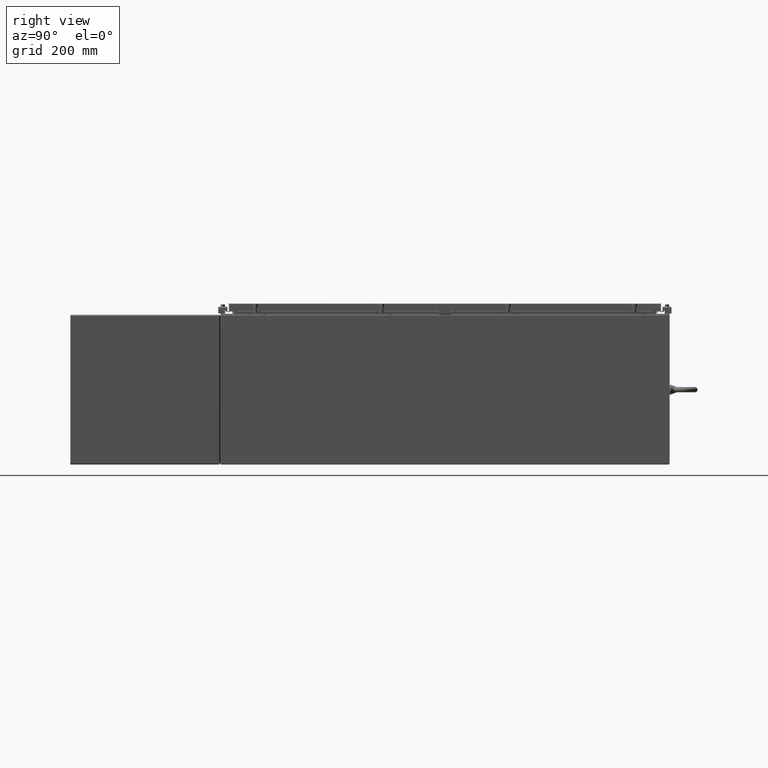
[diagram: clean part render]
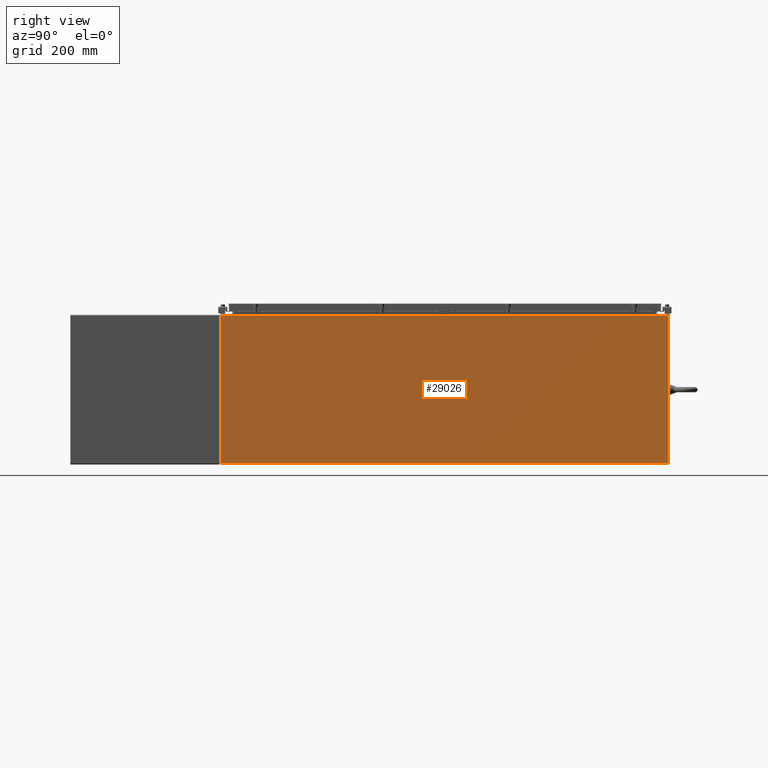
[diagram: same view with one face highlighted and labeled with its STEP entity id]
A machine part, right view. The second image highlights one B-rep face of the part: STEP entity #29026.
In plain terms, the highlighted planar face has unit normal (-1, 0, 0).
Its self-contained STEP definition (entity closure, byte-faithful):
#323 = CARTESIAN_POINT ( 'NONE',  ( 17.99999999999999600, 23.92529999999998600, 0.01300000000000203200 ) ) ;
#720 = LINE ( 'NONE', #53576, #12699 ) ;
#5114 = VERTEX_POINT ( 'NONE', #323 ) ;
#12098 = CARTESIAN_POINT ( 'NONE',  ( 17.99999999999999600, -23.92529999999998900, 0.01299999999999984700 ) ) ;
#12607 = DIRECTION ( 'NONE',  ( -0.0000000000000000000, -1.000000000000000000, -0.0000000000000000000 ) ) ;
#12699 = VECTOR ( 'NONE', #35393, 39.37007874015748100 ) ;
#15356 = VERTEX_POINT ( 'NONE', #37888 ) ;
#16050 = ORIENTED_EDGE ( 'NONE', *, *, #36549, .T. ) ;
#21780 = VERTEX_POINT ( 'NONE', #46532 ) ;
#22519 = EDGE_CURVE ( 'NONE', #15356, #39712, #40827, .T. ) ;
#22869 = VECTOR ( 'NONE', #52908, 39.37007874015748100 ) ;
#25265 = DIRECTION ( 'NONE',  ( -1.000000000000000000, 0.0000000000000000000, 3.430827668758846700E-015 ) ) ;
#27270 = AXIS2_PLACEMENT_3D ( 'NONE', #29637, #25265, #56904 ) ;
#28900 = ORIENTED_EDGE ( 'NONE', *, *, #34805, .F. ) ;
#29026 = ADVANCED_FACE ( 'NONE', ( #37347 ), #47836, .F. ) ;
#29637 = CARTESIAN_POINT ( 'NONE',  ( 17.99999999999999600, 0.0000000000000000000, -6.201571169367080700E-014 ) ) ;
#30642 = EDGE_CURVE ( 'NONE', #5114, #15356, #45918, .T. ) ;
#33929 = ORIENTED_EDGE ( 'NONE', *, *, #22519, .T. ) ;
#34805 = EDGE_CURVE ( 'NONE', #5114, #21780, #46953, .T. ) ;
#35382 = CARTESIAN_POINT ( 'NONE',  ( 18.00000000000005000, -23.92529999999998900, 15.83760000000000200 ) ) ;
#35393 = DIRECTION ( 'NONE',  ( -3.430827668758847500E-015, 0.0000000000000000000, -1.000000000000000000 ) ) ;
#36549 = EDGE_CURVE ( 'NONE', #39712, #21780, #720, .T. ) ;
#37347 = FACE_OUTER_BOUND ( 'NONE', #53251, .T. ) ;
#37888 = CARTESIAN_POINT ( 'NONE',  ( 18.00000000000005000, 23.92529999999998600, 15.83760000000001400 ) ) ;
#39712 = VERTEX_POINT ( 'NONE', #35382 ) ;
#40827 = LINE ( 'NONE', #58323, #52824 ) ;
#44152 = DIRECTION ( 'NONE',  ( 3.430827668758847500E-015, 0.0000000000000000000, 1.000000000000000000 ) ) ;
#44498 = VECTOR ( 'NONE', #44152, 39.37007874015748100 ) ;
#45918 = LINE ( 'NONE', #57849, #44498 ) ;
#46532 = CARTESIAN_POINT ( 'NONE',  ( 17.99999999999999600, -23.92529999999998900, 0.01299999999999898300 ) ) ;
#46953 = LINE ( 'NONE', #12098, #22869 ) ;
#47836 = PLANE ( 'NONE',  #27270 ) ;
#52824 = VECTOR ( 'NONE', #12607, 39.37007874015748100 ) ;
#52908 = DIRECTION ( 'NONE',  ( -1.566960444969418600E-031, -1.000000000000000000, -4.567295697298285000E-017 ) ) ;
#53251 = EDGE_LOOP ( 'NONE', ( #33929, #16050, #28900, #57121 ) ) ;
#53576 = CARTESIAN_POINT ( 'NONE',  ( 17.99999999999999600, -23.92529999999998900, -6.201571169367080700E-014 ) ) ;
#56904 = DIRECTION ( 'NONE',  ( 3.430827668758846700E-015, 0.0000000000000000000, 1.000000000000000000 ) ) ;
#57121 = ORIENTED_EDGE ( 'NONE', *, *, #30642, .T. ) ;
#57849 = CARTESIAN_POINT ( 'NONE',  ( 17.99999999999999600, 23.92529999999998900, -6.201571169367080700E-014 ) ) ;
#58323 = CARTESIAN_POINT ( 'NONE',  ( 18.00000000000005000, 23.92529999999998900, 15.83760000000001400 ) ) ;